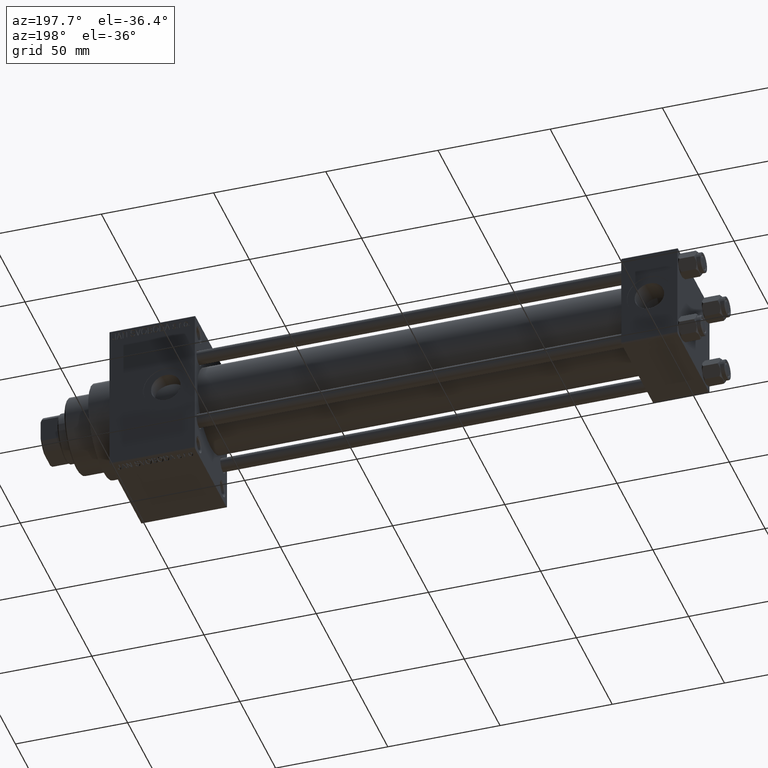
[diagram: clean part render]
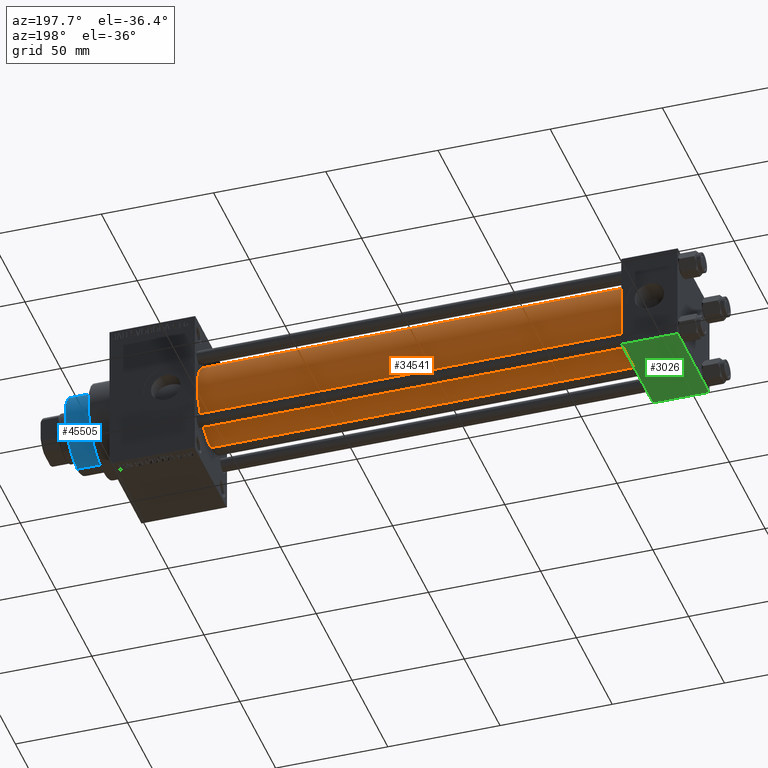
[diagram: same view with three faces highlighted in distinct colors, each labeled with its STEP entity id]
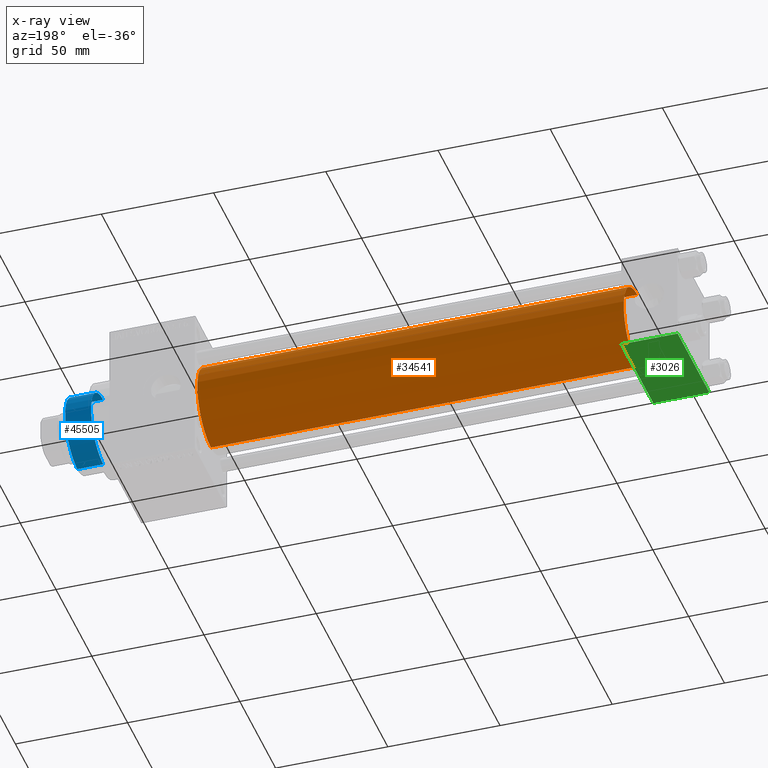
[diagram: x-ray of the same camera — body ghosted, the three highlighted faces saturated]
A machine part, auxiliary view with three faces highlighted in distinct colors.
The next image is the same camera in x-ray (body ghosted, the three faces saturated) — at least one of them is partly hidden behind the body in this view.
Their STEP definitions:

[orange] entity #34541 — the highlighted cylindrical surface (partial cylindrical patch) has radius 19 mm, axis along (-1, -0, -0).
#4240 = AXIS2_PLACEMENT_3D ( 'NONE', #21626, #13956, #37298 ) ;
#5253 = DIRECTION ( 'NONE',  ( -1.000000000000000000, -0.000000000000000000, -0.000000000000000000 ) ) ;
#8802 = EDGE_CURVE ( 'NONE', #20196, #44376, #38311, .T. ) ;
#9147 = VERTEX_POINT ( 'NONE', #39942 ) ;
#9614 = EDGE_LOOP ( 'NONE', ( #45190, #21859, #40570, #15150 ) ) ;
#9659 = DIRECTION ( 'NONE',  ( -1.000000000000000000, -0.000000000000000000, -0.000000000000000000 ) ) ;
#9975 = CYLINDRICAL_SURFACE ( 'NONE', #4240, 19.00000000000000000 ) ;
#11900 = CARTESIAN_POINT ( 'NONE',  ( 215.0000000000000000, -2.752562955852396712E-16, -19.00000000000000000 ) ) ;
#12265 = CARTESIAN_POINT ( 'NONE',  ( 215.0000000000000000, -2.602085213965210642E-15, 0.000000000000000000 ) ) ;
#13956 = DIRECTION ( 'NONE',  ( -1.000000000000000000, -0.000000000000000000, -0.000000000000000000 ) ) ;
#14592 = VECTOR ( 'NONE', #5253, 1000.000000000000000 ) ;
#15150 = ORIENTED_EDGE ( 'NONE', *, *, #34930, .F. ) ;
#20196 = VERTEX_POINT ( 'NONE', #11900 ) ;
#21626 = CARTESIAN_POINT ( 'NONE',  ( 215.0000000000000000, -2.602085213965210642E-15, 0.000000000000000000 ) ) ;
#21859 = ORIENTED_EDGE ( 'NONE', *, *, #8802, .T. ) ;
#22064 = LINE ( 'NONE', #36740, #24907 ) ;
#22355 = CARTESIAN_POINT ( 'NONE',  ( 24.99999999999999289, -2.602085213965210642E-15, 0.000000000000000000 ) ) ;
#22985 = AXIS2_PLACEMENT_3D ( 'NONE', #22355, #45217, #44468 ) ;
#23687 = VERTEX_POINT ( 'NONE', #36656 ) ;
#24907 = VECTOR ( 'NONE', #9659, 1000.000000000000000 ) ;
#25464 = EDGE_CURVE ( 'NONE', #44376, #23687, #38077, .T. ) ;
#29665 = AXIS2_PLACEMENT_3D ( 'NONE', #12265, #41829, #38351 ) ;
#30868 = CARTESIAN_POINT ( 'NONE',  ( 215.0000000000000000, -2.752562955852396712E-16, -19.00000000000000000 ) ) ;
#33090 = FACE_OUTER_BOUND ( 'NONE', #9614, .T. ) ;
#34541 = ADVANCED_FACE ( 'NONE', ( #33090 ), #9975, .T. ) ;
#34930 = EDGE_CURVE ( 'NONE', #9147, #23687, #22064, .T. ) ;
#35343 = EDGE_CURVE ( 'NONE', #20196, #9147, #41581, .T. ) ;
#36656 = CARTESIAN_POINT ( 'NONE',  ( 24.99999999999999289, -2.602085213965210642E-15, 19.00000000000000000 ) ) ;
#36740 = CARTESIAN_POINT ( 'NONE',  ( 215.0000000000000000, -2.602085213965210642E-15, 19.00000000000000000 ) ) ;
#36952 = CARTESIAN_POINT ( 'NONE',  ( 24.99999999999999289, -2.752562955852396712E-16, -19.00000000000000000 ) ) ;
#37298 = DIRECTION ( 'NONE',  ( 0.000000000000000000, 0.000000000000000000, 1.000000000000000000 ) ) ;
#38077 = CIRCLE ( 'NONE', #22985, 19.00000000000000000 ) ;
#38311 = LINE ( 'NONE', #30868, #14592 ) ;
#38351 = DIRECTION ( 'NONE',  ( 0.000000000000000000, 0.000000000000000000, -1.000000000000000000 ) ) ;
#39942 = CARTESIAN_POINT ( 'NONE',  ( 215.0000000000000000, -2.602085213965210642E-15, 19.00000000000000000 ) ) ;
#40570 = ORIENTED_EDGE ( 'NONE', *, *, #25464, .T. ) ;
#41581 = CIRCLE ( 'NONE', #29665, 19.00000000000000000 ) ;
#41829 = DIRECTION ( 'NONE',  ( 1.000000000000000000, 0.000000000000000000, 0.000000000000000000 ) ) ;
#44376 = VERTEX_POINT ( 'NONE', #36952 ) ;
#44468 = DIRECTION ( 'NONE',  ( 0.000000000000000000, 0.000000000000000000, 1.000000000000000000 ) ) ;
#45190 = ORIENTED_EDGE ( 'NONE', *, *, #35343, .F. ) ;
#45217 = DIRECTION ( 'NONE',  ( 1.000000000000000000, -0.000000000000000000, 0.000000000000000000 ) ) ;

[blue] entity #45505 — the highlighted cylindrical surface (partial cylindrical patch) has radius 17 mm, axis along (-1, 0, 0).
#2314 = CARTESIAN_POINT ( 'NONE',  ( 0.000000000000000000, 0.000000000000000000, 43.25999999999999801 ) ) ;
#6447 = LINE ( 'NONE', #13409, #36582 ) ;
#6567 = CARTESIAN_POINT ( 'NONE',  ( 17.00000000000000000, 2.081899558550500280E-15, 55.26000000000000512 ) ) ;
#7257 = CIRCLE ( 'NONE', #19941, 17.00000000000000000 ) ;
#9709 = DIRECTION ( 'NONE',  ( -0.000000000000000000, -0.000000000000000000, -1.000000000000000000 ) ) ;
#10540 = DIRECTION ( 'NONE',  ( -0.000000000000000000, -0.000000000000000000, -1.000000000000000000 ) ) ;
#12864 = ORIENTED_EDGE ( 'NONE', *, *, #29258, .T. ) ;
#12866 = ORIENTED_EDGE ( 'NONE', *, *, #29434, .T. ) ;
#13384 = EDGE_CURVE ( 'NONE', #42596, #41409, #17986, .T. ) ;
#13409 = CARTESIAN_POINT ( 'NONE',  ( -17.00000000000000000, 0.000000000000000000, 55.26000000000000512 ) ) ;
#13937 = FACE_OUTER_BOUND ( 'NONE', #33763, .T. ) ;
#14148 = ORIENTED_EDGE ( 'NONE', *, *, #22525, .T. ) ;
#15860 = DIRECTION ( 'NONE',  ( 1.000000000000000000, 0.000000000000000000, 0.000000000000000000 ) ) ;
#17218 = CARTESIAN_POINT ( 'NONE',  ( 17.00000000000000000, 2.081899558550500280E-15, 43.25999999999999801 ) ) ;
#17406 = CARTESIAN_POINT ( 'NONE',  ( -17.00000000000000000, 0.000000000000000000, 54.76000000000001222 ) ) ;
#17442 = DIRECTION ( 'NONE',  ( 0.000000000000000000, 0.000000000000000000, 1.000000000000000000 ) ) ;
#17861 = DIRECTION ( 'NONE',  ( -0.000000000000000000, -0.000000000000000000, -1.000000000000000000 ) ) ;
#17986 = LINE ( 'NONE', #6567, #25081 ) ;
#19941 = AXIS2_PLACEMENT_3D ( 'NONE', #46406, #46651, #15860 ) ;
#22525 = EDGE_CURVE ( 'NONE', #25181, #41409, #49036, .T. ) ;
#25081 = VECTOR ( 'NONE', #10540, 1000.000000000000000 ) ;
#25181 = VERTEX_POINT ( 'NONE', #47582 ) ;
#27653 = AXIS2_PLACEMENT_3D ( 'NONE', #2314, #17442, #28889 ) ;
#28597 = CARTESIAN_POINT ( 'NONE',  ( 0.000000000000000000, 0.000000000000000000, 55.26000000000000512 ) ) ;
#28889 = DIRECTION ( 'NONE',  ( 1.000000000000000000, 0.000000000000000000, 0.000000000000000000 ) ) ;
#29090 = DIRECTION ( 'NONE',  ( -1.000000000000000000, 0.000000000000000000, 0.000000000000000000 ) ) ;
#29258 = EDGE_CURVE ( 'NONE', #38916, #25181, #6447, .T. ) ;
#29434 = EDGE_CURVE ( 'NONE', #42596, #38916, #7257, .T. ) ;
#33763 = EDGE_LOOP ( 'NONE', ( #46908, #12866, #12864, #14148 ) ) ;
#34631 = CARTESIAN_POINT ( 'NONE',  ( 17.00000000000000000, 2.081899558550500280E-15, 54.76000000000001222 ) ) ;
#35483 = AXIS2_PLACEMENT_3D ( 'NONE', #28597, #9709, #29090 ) ;
#36542 = CYLINDRICAL_SURFACE ( 'NONE', #35483, 17.00000000000000000 ) ;
#36582 = VECTOR ( 'NONE', #17861, 1000.000000000000000 ) ;
#38916 = VERTEX_POINT ( 'NONE', #17406 ) ;
#41409 = VERTEX_POINT ( 'NONE', #17218 ) ;
#42596 = VERTEX_POINT ( 'NONE', #34631 ) ;
#45505 = ADVANCED_FACE ( 'NONE', ( #13937 ), #36542, .T. ) ;
#46406 = CARTESIAN_POINT ( 'NONE',  ( 0.000000000000000000, 0.000000000000000000, 54.76000000000001222 ) ) ;
#46651 = DIRECTION ( 'NONE',  ( 0.000000000000000000, 0.000000000000000000, -1.000000000000000000 ) ) ;
#46908 = ORIENTED_EDGE ( 'NONE', *, *, #13384, .F. ) ;
#47582 = CARTESIAN_POINT ( 'NONE',  ( -17.00000000000000000, 0.000000000000000000, 43.25999999999999801 ) ) ;
#49036 = CIRCLE ( 'NONE', #27653, 17.00000000000000000 ) ;

[green] entity #3026 — the highlighted planar face has unit normal (0, 0, -1).
#157 = AXIS2_PLACEMENT_3D ( 'NONE', #16923, #32099, #13702 ) ;
#3026 = ADVANCED_FACE ( 'NONE', ( #47716 ), #20886, .T. ) ;
#4584 = CARTESIAN_POINT ( 'NONE',  ( 0.000000000000000000, -21.99999999999997158, -22.50000000000000711 ) ) ;
#7451 = EDGE_CURVE ( 'NONE', #29464, #17777, #22308, .T. ) ;
#8343 = VERTEX_POINT ( 'NONE', #26560 ) ;
#8991 = DIRECTION ( 'NONE',  ( 1.000000000000000000, 0.000000000000000000, 0.000000000000000000 ) ) ;
#9274 = ORIENTED_EDGE ( 'NONE', *, *, #7451, .F. ) ;
#12068 = EDGE_CURVE ( 'NONE', #8343, #17777, #25993, .T. ) ;
#13592 = CARTESIAN_POINT ( 'NONE',  ( 0.000000000000000000, 21.99999999999999289, -22.49999999999999645 ) ) ;
#13702 = DIRECTION ( 'NONE',  ( 0.000000000000000000, 1.000000000000000000, 2.312964634635742957E-16 ) ) ;
#15022 = EDGE_LOOP ( 'NONE', ( #9274, #36816, #40108, #21654 ) ) ;
#16923 = CARTESIAN_POINT ( 'NONE',  ( 25.00000000000000000, 22.50000000000000000, -22.49999999999999645 ) ) ;
#17777 = VERTEX_POINT ( 'NONE', #4584 ) ;
#20557 = VECTOR ( 'NONE', #8991, 1000.000000000000000 ) ;
#20886 = PLANE ( 'NONE',  #157 ) ;
#21654 = ORIENTED_EDGE ( 'NONE', *, *, #12068, .T. ) ;
#22005 = CARTESIAN_POINT ( 'NONE',  ( 0.000000000000000000, -21.99999999999998579, -22.50000000000000711 ) ) ;
#22308 = LINE ( 'NONE', #26054, #29630 ) ;
#22562 = DIRECTION ( 'NONE',  ( 0.000000000000000000, -1.000000000000000000, -2.312964634635742957E-16 ) ) ;
#25017 = VECTOR ( 'NONE', #48339, 1000.000000000000000 ) ;
#25341 = EDGE_CURVE ( 'NONE', #29464, #44845, #35580, .T. ) ;
#25993 = LINE ( 'NONE', #22005, #25017 ) ;
#26054 = CARTESIAN_POINT ( 'NONE',  ( 0.000000000000000000, 22.50000000000000000, -22.49999999999999645 ) ) ;
#26560 = CARTESIAN_POINT ( 'NONE',  ( 25.00000000000000000, -21.99999999999997158, -22.50000000000000711 ) ) ;
#28455 = DIRECTION ( 'NONE',  ( 0.000000000000000000, -1.000000000000000000, -2.312964634635742957E-16 ) ) ;
#29464 = VERTEX_POINT ( 'NONE', #13592 ) ;
#29630 = VECTOR ( 'NONE', #22562, 1000.000000000000000 ) ;
#32099 = DIRECTION ( 'NONE',  ( 0.000000000000000000, 2.312964634635742957E-16, -1.000000000000000000 ) ) ;
#35580 = LINE ( 'NONE', #42790, #20557 ) ;
#36154 = CARTESIAN_POINT ( 'NONE',  ( 25.00000000000000000, 22.50000000000000000, -22.49999999999999645 ) ) ;
#36816 = ORIENTED_EDGE ( 'NONE', *, *, #25341, .T. ) ;
#38246 = CARTESIAN_POINT ( 'NONE',  ( 25.00000000000000000, 21.99999999999999289, -22.49999999999999645 ) ) ;
#39381 = EDGE_CURVE ( 'NONE', #44845, #8343, #39634, .T. ) ;
#39634 = LINE ( 'NONE', #36154, #47121 ) ;
#40108 = ORIENTED_EDGE ( 'NONE', *, *, #39381, .T. ) ;
#42790 = CARTESIAN_POINT ( 'NONE',  ( 25.00000000000000000, 21.99999999999999289, -22.49999999999999645 ) ) ;
#44845 = VERTEX_POINT ( 'NONE', #38246 ) ;
#47121 = VECTOR ( 'NONE', #28455, 1000.000000000000000 ) ;
#47716 = FACE_OUTER_BOUND ( 'NONE', #15022, .T. ) ;
#48339 = DIRECTION ( 'NONE',  ( -1.000000000000000000, 0.000000000000000000, 0.000000000000000000 ) ) ;